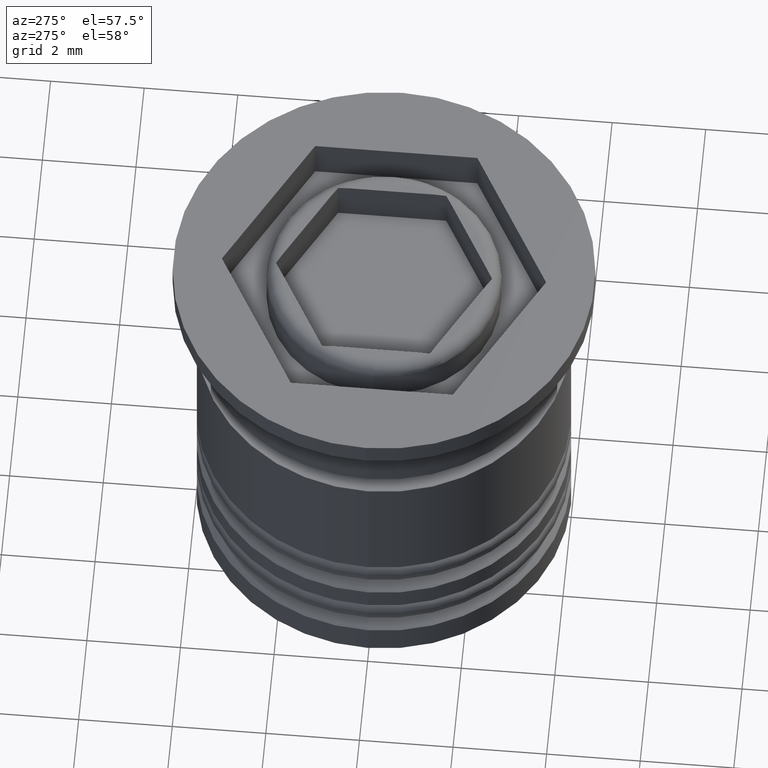
[diagram: clean part render]
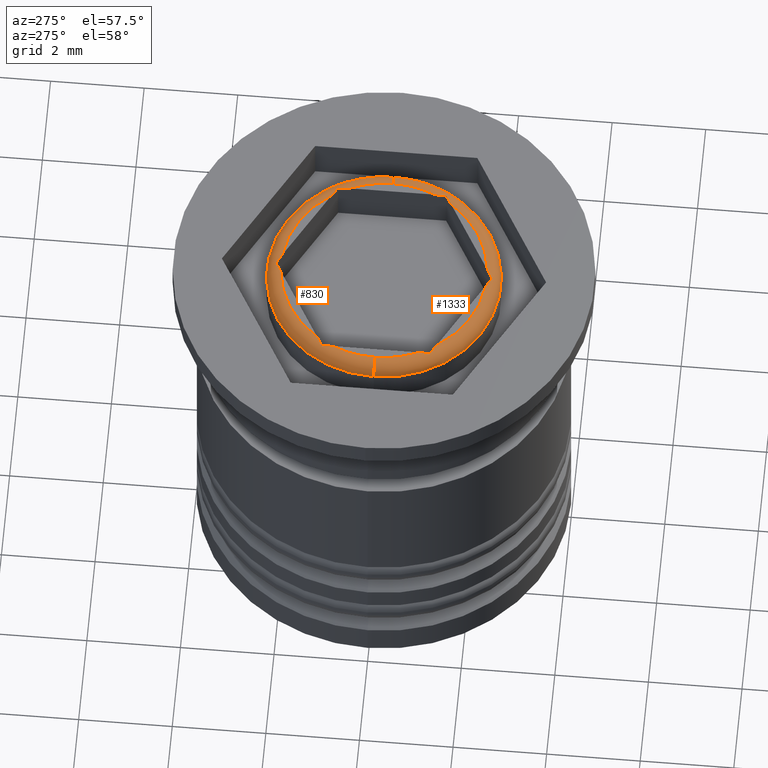
[diagram: same view with one multi-face feature highlighted, each face labeled with its STEP entity id]
A machine part, auxiliary view. The highlighted faces form ONE feature: a constant-radius fillet chain: 2 tangent blend faces with common blend radius 0.3 mm. The faces share edges in the B-rep.
Their STEP definitions:
[1] entity #1333 (Torus):
#7 = VERTEX_POINT ( 'NONE', #524 ) ;
#32 = VERTEX_POINT ( 'NONE', #729 ) ;
#45 = B_SPLINE_CURVE_WITH_KNOTS ( 'NONE', 3,
 ( #566, #96, #1338, #118 ),
 .UNSPECIFIED., .F., .F.,
 ( 4, 4 ),
 ( 1.212469994430350721E-20, 0.0002390796478456412881 ),
 .UNSPECIFIED. ) ;
#54 = CARTESIAN_POINT ( 'NONE',  ( -2.200000000000000622, 2.694222958124177500E-16, -0.2999999999999999334 ) ) ;
#94 = EDGE_CURVE ( 'NONE', #1356, #1150, #483, .T. ) ;
#96 = CARTESIAN_POINT ( 'NONE',  ( 0.06811851271951849252, -2.270072835103092324, -0.005256474890640268696 ) ) ;
#118 = CARTESIAN_POINT ( 'NONE',  ( 0.2062746066806211975, -2.190308377064462242, 0.000000000000000000 ) ) ;
#124 = EDGE_CURVE ( 'NONE', #7, #32, #1012, .T. ) ;
#138 = B_SPLINE_CURVE_WITH_KNOTS ( 'NONE', 3,
 ( #246, #1624, #579, #1442 ),
 .UNSPECIFIED., .F., .F.,
 ( 4, 4 ),
 ( 0.000000000000000000, 0.0002390796478456422638 ),
 .UNSPECIFIED. ) ;
#165 = CIRCLE ( 'NONE', #2001, 2.200000000000000622 ) ;
#220 = DIRECTION ( 'NONE',  ( 0.000000000000000000, -1.000000000000000000, 0.000000000000000000 ) ) ;
#238 = TOROIDAL_SURFACE ( 'NONE', #1371, 2.200000000000000622, 0.2999999999999999889 ) ;
#246 = CARTESIAN_POINT ( 'NONE',  ( -2.000000000000000444, -0.9165151389911687652, 0.000000000000000000 ) ) ;
#250 = ORIENTED_EDGE ( 'NONE', *, *, #1587, .F. ) ;
#259 = FACE_OUTER_BOUND ( 'NONE', #1765, .T. ) ;
#271 = CARTESIAN_POINT ( 'NONE',  ( 1.793725393319378192, -1.273793238073292811, 0.000000000000000000 ) ) ;
#276 = DIRECTION ( 'NONE',  ( -0.000000000000000000, -0.000000000000000000, 1.000000000000000000 ) ) ;
#339 = VERTEX_POINT ( 'NONE', #1151 ) ;
#348 = EDGE_CURVE ( 'NONE', #32, #1118, #138, .T. ) ;
#450 = B_SPLINE_CURVE_WITH_KNOTS ( 'NONE', 3,
 ( #1606, #694, #684, #1299 ),
 .UNSPECIFIED., .F., .F.,
 ( 4, 4 ),
 ( 2.722018774469122024E-20, 0.0002390796478456413423 ),
 .UNSPECIFIED. ) ;
#466 = ORIENTED_EDGE ( 'NONE', *, *, #1265, .F. ) ;
#483 = CIRCLE ( 'NONE', #1863, 0.2999999999999999334 ) ;
#487 = CARTESIAN_POINT ( 'NONE',  ( -2.500000000000000444, 0.000000000000000000, -0.2999999999999999334 ) ) ;
#518 = ORIENTED_EDGE ( 'NONE', *, *, #547, .F. ) ;
#524 = CARTESIAN_POINT ( 'NONE',  ( -2.200000000000000622, 2.877919977996280320E-16, 0.000000000000000000 ) ) ;
#525 = AXIS2_PLACEMENT_3D ( 'NONE', #54, #1595, #1755 ) ;
#547 = EDGE_CURVE ( 'NONE', #1118, #1890, #1633, .T. ) ;
#549 = DIRECTION ( 'NONE',  ( 0.000000000000000000, 0.000000000000000000, -1.000000000000000000 ) ) ;
#566 = CARTESIAN_POINT ( 'NONE',  ( -2.168404344971008868E-16, -2.309401076758503368, -0.02065898188042571137 ) ) ;
#572 = VERTEX_POINT ( 'NONE', #1131 ) ;
#579 = CARTESIAN_POINT ( 'NONE',  ( -2.000000000000000444, -1.076044055068429151, -0.005256474890640312932 ) ) ;
#582 = DIRECTION ( 'NONE',  ( 1.000000000000000000, 0.000000000000000000, 0.000000000000000000 ) ) ;
#583 = CARTESIAN_POINT ( 'NONE',  ( 2.000000000000000000, -1.154700538379252128, -0.02065898188042571137 ) ) ;
#635 = ORIENTED_EDGE ( 'NONE', *, *, #1949, .F. ) ;
#640 = ORIENTED_EDGE ( 'NONE', *, *, #1639, .F. ) ;
#684 = CARTESIAN_POINT ( 'NONE',  ( -0.06811851271951903375, -2.270072835103092324, -0.005256474890640238339 ) ) ;
#694 = CARTESIAN_POINT ( 'NONE',  ( -0.1369991406722239902, -2.230304586012647139, 0.000000000000000000 ) ) ;
#703 = ORIENTED_EDGE ( 'NONE', *, *, #124, .F. ) ;
#718 = CARTESIAN_POINT ( 'NONE',  ( 0.000000000000000000, 0.000000000000000000, 0.000000000000000000 ) ) ;
#729 = CARTESIAN_POINT ( 'NONE',  ( -2.000000000000000444, -0.9165151389911687652, 0.000000000000000000 ) ) ;
#741 = CARTESIAN_POINT ( 'NONE',  ( 2.500000000000000444, 3.061616997868383634E-16, -0.2999999999999999334 ) ) ;
#798 = ORIENTED_EDGE ( 'NONE', *, *, #1673, .F. ) ;
#828 = CARTESIAN_POINT ( 'NONE',  ( -1.863000859327776260, -1.233797029125107469, 7.434342767888522002E-18 ) ) ;
#851 = CARTESIAN_POINT ( 'NONE',  ( 2.000000000000000000, -1.154700538379252128, -0.02065898188042571137 ) ) ;
#885 = ORIENTED_EDGE ( 'NONE', *, *, #1847, .F. ) ;
#894 = EDGE_CURVE ( 'NONE', #339, #963, #450, .T. ) ;
#903 = B_SPLINE_CURVE_WITH_KNOTS ( 'NONE', 3,
 ( #851, #1473, #1167, #1958 ),
 .UNSPECIFIED., .F., .F.,
 ( 4, 4 ),
 ( 0.000000000000000000, 0.0002390796478456419115 ),
 .UNSPECIFIED. ) ;
#963 = VERTEX_POINT ( 'NONE', #1997 ) ;
#999 = DIRECTION ( 'NONE',  ( 1.000000000000000000, 0.000000000000000000, 0.000000000000000000 ) ) ;
#1012 = CIRCLE ( 'NONE', #2028, 2.200000000000000622 ) ;
#1043 = CARTESIAN_POINT ( 'NONE',  ( 0.000000000000000000, 0.000000000000000000, 0.000000000000000000 ) ) ;
#1047 = CARTESIAN_POINT ( 'NONE',  ( 0.000000000000000000, 0.000000000000000000, 0.000000000000000000 ) ) ;
#1081 = CARTESIAN_POINT ( 'NONE',  ( 1.863000859327775816, -1.233797029125107469, 0.000000000000000000 ) ) ;
#1118 = VERTEX_POINT ( 'NONE', #1454 ) ;
#1131 = CARTESIAN_POINT ( 'NONE',  ( 2.000000000000000000, -1.154700538379252128, -0.02065898188042571137 ) ) ;
#1135 = ORIENTED_EDGE ( 'NONE', *, *, #348, .F. ) ;
#1150 = VERTEX_POINT ( 'NONE', #1884 ) ;
#1151 = CARTESIAN_POINT ( 'NONE',  ( -0.2062746066806217526, -2.190308377064462242, 0.000000000000000000 ) ) ;
#1167 = CARTESIAN_POINT ( 'NONE',  ( 2.000000000000000000, -0.9965075568875400025, 3.123516711406614449E-17 ) ) ;
#1180 = CARTESIAN_POINT ( 'NONE',  ( 0.000000000000000000, 0.000000000000000000, 0.000000000000000000 ) ) ;
#1198 = CARTESIAN_POINT ( 'NONE',  ( 0.000000000000000000, 0.000000000000000000, -0.2999999999999999334 ) ) ;
#1210 = EDGE_CURVE ( 'NONE', #1444, #1150, #1943, .T. ) ;
#1218 = CARTESIAN_POINT ( 'NONE',  ( 1.793725393319378192, -1.273793238073292811, 0.000000000000000000 ) ) ;
#1234 = CIRCLE ( 'NONE', #1661, 2.200000000000000622 ) ;
#1265 = EDGE_CURVE ( 'NONE', #572, #1444, #903, .T. ) ;
#1278 = CARTESIAN_POINT ( 'NONE',  ( -1.931881487280481702, -1.194028780034662729, -0.005256474890640312932 ) ) ;
#1282 = ORIENTED_EDGE ( 'NONE', *, *, #94, .T. ) ;
#1299 = CARTESIAN_POINT ( 'NONE',  ( -2.168404344971008868E-16, -2.309401076758503368, -0.02065898188042571137 ) ) ;
#1333 = ADVANCED_FACE ( 'NONE', ( #259 ), #238, .T. ) ;
#1338 = CARTESIAN_POINT ( 'NONE',  ( 0.1369991406722237681, -2.230304586012647583, -3.386240097523933451E-18 ) ) ;
#1350 = DIRECTION ( 'NONE',  ( 1.000000000000000000, 0.000000000000000000, 0.000000000000000000 ) ) ;
#1356 = VERTEX_POINT ( 'NONE', #741 ) ;
#1371 = AXIS2_PLACEMENT_3D ( 'NONE', #2013, #1504, #1515 ) ;
#1442 = CARTESIAN_POINT ( 'NONE',  ( -2.000000000000000444, -1.154700538379251684, -0.02065898188042571137 ) ) ;
#1444 = VERTEX_POINT ( 'NONE', #1654 ) ;
#1454 = CARTESIAN_POINT ( 'NONE',  ( -2.000000000000000444, -1.154700538379251684, -0.02065898188042571137 ) ) ;
#1466 = DIRECTION ( 'NONE',  ( -0.000000000000000000, -0.000000000000000000, 1.000000000000000000 ) ) ;
#1473 = CARTESIAN_POINT ( 'NONE',  ( 2.000000000000000000, -1.076044055068429595, -0.005256474890640241808 ) ) ;
#1474 = DIRECTION ( 'NONE',  ( 0.000000000000000000, 0.000000000000000000, -1.000000000000000000 ) ) ;
#1500 = EDGE_CURVE ( 'NONE', #1868, #7, #1833, .T. ) ;
#1504 = DIRECTION ( 'NONE',  ( -0.000000000000000000, -0.000000000000000000, 1.000000000000000000 ) ) ;
#1505 = DIRECTION ( 'NONE',  ( 1.000000000000000000, 0.000000000000000000, 0.000000000000000000 ) ) ;
#1515 = DIRECTION ( 'NONE',  ( 1.000000000000000000, 0.000000000000000000, 0.000000000000000000 ) ) ;
#1530 = AXIS2_PLACEMENT_3D ( 'NONE', #718, #1466, #999 ) ;
#1582 = CARTESIAN_POINT ( 'NONE',  ( -1.793725393319378636, -1.273793238073292589, 0.000000000000000000 ) ) ;
#1587 = EDGE_CURVE ( 'NONE', #963, #1594, #45, .T. ) ;
#1594 = VERTEX_POINT ( 'NONE', #1805 ) ;
#1595 = DIRECTION ( 'NONE',  ( 1.224646799147353207E-16, 1.000000000000000000, 0.000000000000000000 ) ) ;
#1606 = CARTESIAN_POINT ( 'NONE',  ( -0.2062746066806217526, -2.190308377064462242, 0.000000000000000000 ) ) ;
#1617 = ORIENTED_EDGE ( 'NONE', *, *, #1500, .F. ) ;
#1624 = CARTESIAN_POINT ( 'NONE',  ( -2.000000000000000444, -0.9965075568875393364, 0.000000000000000000 ) ) ;
#1633 = B_SPLINE_CURVE_WITH_KNOTS ( 'NONE', 3,
 ( #1761, #1278, #828, #1911 ),
 .UNSPECIFIED., .F., .F.,
 ( 4, 4 ),
 ( 3.388131789017200980E-21, 0.0002390796478456416675 ),
 .UNSPECIFIED. ) ;
#1639 = EDGE_CURVE ( 'NONE', #1890, #339, #1234, .T. ) ;
#1654 = CARTESIAN_POINT ( 'NONE',  ( 2.000000000000000000, -0.9165151389911695423, 0.000000000000000000 ) ) ;
#1661 = AXIS2_PLACEMENT_3D ( 'NONE', #1180, #1981, #1816 ) ;
#1668 = B_SPLINE_CURVE_WITH_KNOTS ( 'NONE', 3,
 ( #1218, #1081, #1993, #583 ),
 .UNSPECIFIED., .F., .F.,
 ( 4, 4 ),
 ( 9.333598368916043247E-21, 0.0002390796478456414507 ),
 .UNSPECIFIED. ) ;
#1673 = EDGE_CURVE ( 'NONE', #1356, #1868, #1945, .T. ) ;
#1708 = ORIENTED_EDGE ( 'NONE', *, *, #894, .F. ) ;
#1755 = DIRECTION ( 'NONE',  ( -1.000000000000000000, 1.224646799147353207E-16, 0.000000000000000000 ) ) ;
#1761 = CARTESIAN_POINT ( 'NONE',  ( -2.000000000000000444, -1.154700538379251684, -0.02065898188042571137 ) ) ;
#1765 = EDGE_LOOP ( 'NONE', ( #1617, #798, #1282, #1926, #466, #885, #635, #250, #1708, #640, #518, #1135, #703 ) ) ;
#1799 = VERTEX_POINT ( 'NONE', #271 ) ;
#1805 = CARTESIAN_POINT ( 'NONE',  ( 0.2062746066806211975, -2.190308377064462242, 0.000000000000000000 ) ) ;
#1816 = DIRECTION ( 'NONE',  ( 1.000000000000000000, 0.000000000000000000, 0.000000000000000000 ) ) ;
#1827 = DIRECTION ( 'NONE',  ( -0.000000000000000000, -0.000000000000000000, 1.000000000000000000 ) ) ;
#1833 = CIRCLE ( 'NONE', #525, 0.2999999999999999334 ) ;
#1847 = EDGE_CURVE ( 'NONE', #1799, #572, #1668, .T. ) ;
#1863 = AXIS2_PLACEMENT_3D ( 'NONE', #1966, #220, #1474 ) ;
#1868 = VERTEX_POINT ( 'NONE', #487 ) ;
#1884 = CARTESIAN_POINT ( 'NONE',  ( 2.200000000000000622, 0.000000000000000000, 0.000000000000000000 ) ) ;
#1890 = VERTEX_POINT ( 'NONE', #1582 ) ;
#1911 = CARTESIAN_POINT ( 'NONE',  ( -1.793725393319378636, -1.273793238073292589, 0.000000000000000000 ) ) ;
#1926 = ORIENTED_EDGE ( 'NONE', *, *, #1210, .F. ) ;
#1943 = CIRCLE ( 'NONE', #1530, 2.200000000000000622 ) ;
#1945 = CIRCLE ( 'NONE', #2031, 2.500000000000000444 ) ;
#1949 = EDGE_CURVE ( 'NONE', #1594, #1799, #165, .T. ) ;
#1958 = CARTESIAN_POINT ( 'NONE',  ( 2.000000000000000000, -0.9165151389911695423, 0.000000000000000000 ) ) ;
#1966 = CARTESIAN_POINT ( 'NONE',  ( 2.200000000000000622, 0.000000000000000000, -0.2999999999999999334 ) ) ;
#1981 = DIRECTION ( 'NONE',  ( -0.000000000000000000, -0.000000000000000000, 1.000000000000000000 ) ) ;
#1993 = CARTESIAN_POINT ( 'NONE',  ( 1.931881487280481258, -1.194028780034663173, -0.005256474890640258288 ) ) ;
#1997 = CARTESIAN_POINT ( 'NONE',  ( -2.168404344971008868E-16, -2.309401076758503368, -0.02065898188042571137 ) ) ;
#2001 = AXIS2_PLACEMENT_3D ( 'NONE', #1043, #1827, #582 ) ;
#2013 = CARTESIAN_POINT ( 'NONE',  ( 0.000000000000000000, 0.000000000000000000, -0.2999999999999999334 ) ) ;
#2028 = AXIS2_PLACEMENT_3D ( 'NONE', #1047, #276, #1505 ) ;
#2031 = AXIS2_PLACEMENT_3D ( 'NONE', #1198, #549, #1350 ) ;
[2] entity #830 (Torus):
#7 = VERTEX_POINT ( 'NONE', #524 ) ;
#33 = ORIENTED_EDGE ( 'NONE', *, *, #2009, .F. ) ;
#44 = DIRECTION ( 'NONE',  ( 1.000000000000000000, 0.000000000000000000, 0.000000000000000000 ) ) ;
#48 = VERTEX_POINT ( 'NONE', #360 ) ;
#51 = ORIENTED_EDGE ( 'NONE', *, *, #1957, .F. ) ;
#54 = CARTESIAN_POINT ( 'NONE',  ( -2.200000000000000622, 2.694222958124177500E-16, -0.2999999999999999334 ) ) ;
#61 = B_SPLINE_CURVE_WITH_KNOTS ( 'NONE', 3,
 ( #428, #258, #1514, #1973 ),
 .UNSPECIFIED., .F., .F.,
 ( 4, 4 ),
 ( 2.996442637876366042E-19, 0.0002390796478456412068 ),
 .UNSPECIFIED. ) ;
#94 = EDGE_CURVE ( 'NONE', #1356, #1150, #483, .T. ) ;
#108 = EDGE_CURVE ( 'NONE', #906, #137, #678, .T. ) ;
#121 = CARTESIAN_POINT ( 'NONE',  ( 2.000000000000000888, 0.9165151389911680990, 0.000000000000000000 ) ) ;
#122 = CARTESIAN_POINT ( 'NONE',  ( 0.000000000000000000, 0.000000000000000000, 0.000000000000000000 ) ) ;
#137 = VERTEX_POINT ( 'NONE', #1672 ) ;
#195 = CARTESIAN_POINT ( 'NONE',  ( -1.793725393319378858, 1.273793238073292589, 0.000000000000000000 ) ) ;
#200 = VERTEX_POINT ( 'NONE', #2017 ) ;
#207 = DIRECTION ( 'NONE',  ( 1.000000000000000000, 0.000000000000000000, 0.000000000000000000 ) ) ;
#215 = CARTESIAN_POINT ( 'NONE',  ( 0.000000000000000000, 0.000000000000000000, 0.000000000000000000 ) ) ;
#220 = DIRECTION ( 'NONE',  ( 0.000000000000000000, -1.000000000000000000, 0.000000000000000000 ) ) ;
#230 = CIRCLE ( 'NONE', #659, 2.200000000000000622 ) ;
#242 = EDGE_CURVE ( 'NONE', #471, #48, #1246, .T. ) ;
#258 = CARTESIAN_POINT ( 'NONE',  ( 0.1369991406722236571, 2.230304586012647139, 0.000000000000000000 ) ) ;
#287 = CARTESIAN_POINT ( 'NONE',  ( -2.000000000000000444, 1.154700538379251462, -0.02065898188042571137 ) ) ;
#360 = CARTESIAN_POINT ( 'NONE',  ( 1.793725393319377970, 1.273793238073292589, 0.000000000000000000 ) ) ;
#368 = ORIENTED_EDGE ( 'NONE', *, *, #94, .F. ) ;
#371 = CARTESIAN_POINT ( 'NONE',  ( 0.000000000000000000, 2.309401076758503368, -0.02065898188042571137 ) ) ;
#387 = EDGE_CURVE ( 'NONE', #48, #624, #662, .T. ) ;
#390 = CARTESIAN_POINT ( 'NONE',  ( -1.793725393319378858, 1.273793238073292589, 0.000000000000000000 ) ) ;
#421 = CARTESIAN_POINT ( 'NONE',  ( 2.000000000000000888, 1.076044055068428928, -0.005256474890640319003 ) ) ;
#428 = CARTESIAN_POINT ( 'NONE',  ( 0.2062746066806217526, 2.190308377064462242, 0.000000000000000000 ) ) ;
#471 = VERTEX_POINT ( 'NONE', #877 ) ;
#483 = CIRCLE ( 'NONE', #1863, 0.2999999999999999334 ) ;
#487 = CARTESIAN_POINT ( 'NONE',  ( -2.500000000000000444, 0.000000000000000000, -0.2999999999999999334 ) ) ;
#512 = ORIENTED_EDGE ( 'NONE', *, *, #1500, .T. ) ;
#524 = CARTESIAN_POINT ( 'NONE',  ( -2.200000000000000622, 2.877919977996280320E-16, 0.000000000000000000 ) ) ;
#525 = AXIS2_PLACEMENT_3D ( 'NONE', #54, #1595, #1755 ) ;
#535 = CIRCLE ( 'NONE', #991, 2.200000000000000622 ) ;
#539 = CARTESIAN_POINT ( 'NONE',  ( 0.000000000000000000, 2.309401076758503368, -0.02065898188042571137 ) ) ;
#551 = CARTESIAN_POINT ( 'NONE',  ( 1.931881487280481924, 1.194028780034662951, -0.005256474890640377116 ) ) ;
#567 = VERTEX_POINT ( 'NONE', #1452 ) ;
#575 = B_SPLINE_CURVE_WITH_KNOTS ( 'NONE', 3,
 ( #287, #1688, #1548, #1229 ),
 .UNSPECIFIED., .F., .F.,
 ( 4, 4 ),
 ( 0.000000000000000000, 0.0002390796478456420199 ),
 .UNSPECIFIED. ) ;
#603 = CARTESIAN_POINT ( 'NONE',  ( 0.000000000000000000, 0.000000000000000000, 0.000000000000000000 ) ) ;
#614 = EDGE_CURVE ( 'NONE', #1868, #1356, #1451, .T. ) ;
#624 = VERTEX_POINT ( 'NONE', #1892 ) ;
#627 = ORIENTED_EDGE ( 'NONE', *, *, #786, .F. ) ;
#659 = AXIS2_PLACEMENT_3D ( 'NONE', #603, #1867, #748 ) ;
#662 = CIRCLE ( 'NONE', #1740, 2.200000000000000622 ) ;
#667 = ORIENTED_EDGE ( 'NONE', *, *, #1169, .F. ) ;
#673 = CARTESIAN_POINT ( 'NONE',  ( -1.931881487280481702, 1.194028780034662729, -0.005256474890640332881 ) ) ;
#678 = B_SPLINE_CURVE_WITH_KNOTS ( 'NONE', 3,
 ( #539, #1156, #1196, #743 ),
 .UNSPECIFIED., .F., .F.,
 ( 4, 4 ),
 ( 1.212469994430350270E-20, 0.0002390796478456412881 ),
 .UNSPECIFIED. ) ;
#716 = CARTESIAN_POINT ( 'NONE',  ( 2.000000000000000888, 1.154700538379251684, -0.02065898188042657874 ) ) ;
#741 = CARTESIAN_POINT ( 'NONE',  ( 2.500000000000000444, 3.061616997868383634E-16, -0.2999999999999999334 ) ) ;
#743 = CARTESIAN_POINT ( 'NONE',  ( -0.2062746066806214196, 2.190308377064462242, 0.000000000000000000 ) ) ;
#748 = DIRECTION ( 'NONE',  ( 1.000000000000000000, 0.000000000000000000, 0.000000000000000000 ) ) ;
#786 = EDGE_CURVE ( 'NONE', #624, #906, #61, .T. ) ;
#795 = CIRCLE ( 'NONE', #1696, 2.200000000000000622 ) ;
#808 = EDGE_LOOP ( 'NONE', ( #1087, #512, #1014, #33, #667, #1071, #909, #627, #1896, #932, #51, #1247, #368 ) ) ;
#818 = CARTESIAN_POINT ( 'NONE',  ( 0.000000000000000000, 0.000000000000000000, -0.2999999999999999334 ) ) ;
#827 = FACE_OUTER_BOUND ( 'NONE', #808, .T. ) ;
#829 = CARTESIAN_POINT ( 'NONE',  ( -1.863000859327776260, 1.233797029125107247, -7.123549657312952816E-17 ) ) ;
#830 = ADVANCED_FACE ( 'NONE', ( #827 ), #1512, .T. ) ;
#838 = CARTESIAN_POINT ( 'NONE',  ( 0.000000000000000000, 0.000000000000000000, 0.000000000000000000 ) ) ;
#857 = EDGE_CURVE ( 'NONE', #1150, #200, #535, .T. ) ;
#877 = CARTESIAN_POINT ( 'NONE',  ( 2.000000000000000888, 1.154700538379251684, -0.02065898188042657874 ) ) ;
#896 = CARTESIAN_POINT ( 'NONE',  ( 2.000000000000000888, 0.9965075568875386702, -5.781863551040906149E-17 ) ) ;
#906 = VERTEX_POINT ( 'NONE', #371 ) ;
#909 = ORIENTED_EDGE ( 'NONE', *, *, #108, .F. ) ;
#932 = ORIENTED_EDGE ( 'NONE', *, *, #242, .F. ) ;
#982 = B_SPLINE_CURVE_WITH_KNOTS ( 'NONE', 3,
 ( #195, #829, #673, #1291 ),
 .UNSPECIFIED., .F., .F.,
 ( 4, 4 ),
 ( 2.174422272890622232E-19, 0.0002390796478456415591 ),
 .UNSPECIFIED. ) ;
#991 = AXIS2_PLACEMENT_3D ( 'NONE', #838, #1586, #1779 ) ;
#1014 = ORIENTED_EDGE ( 'NONE', *, *, #1803, .F. ) ;
#1030 = B_SPLINE_CURVE_WITH_KNOTS ( 'NONE', 3,
 ( #121, #896, #421, #1999 ),
 .UNSPECIFIED., .F., .F.,
 ( 4, 4 ),
 ( 1.088212275557260522E-19, 0.0002390796478456430499 ),
 .UNSPECIFIED. ) ;
#1052 = DIRECTION ( 'NONE',  ( -0.000000000000000000, -0.000000000000000000, 1.000000000000000000 ) ) ;
#1071 = ORIENTED_EDGE ( 'NONE', *, *, #1324, .F. ) ;
#1087 = ORIENTED_EDGE ( 'NONE', *, *, #614, .F. ) ;
#1150 = VERTEX_POINT ( 'NONE', #1884 ) ;
#1153 = CARTESIAN_POINT ( 'NONE',  ( 1.793725393319377970, 1.273793238073292589, 0.000000000000000000 ) ) ;
#1156 = CARTESIAN_POINT ( 'NONE',  ( -0.06811851271951871456, 2.270072835103092324, -0.005256474890640268696 ) ) ;
#1169 = EDGE_CURVE ( 'NONE', #1220, #1887, #982, .T. ) ;
#1181 = AXIS2_PLACEMENT_3D ( 'NONE', #1608, #1800, #207 ) ;
#1191 = CARTESIAN_POINT ( 'NONE',  ( 1.863000859327776260, 1.233797029125107692, 2.956739694495964183E-17 ) ) ;
#1196 = CARTESIAN_POINT ( 'NONE',  ( -0.1369991406722239902, 2.230304586012647583, 2.874465159271312722E-18 ) ) ;
#1220 = VERTEX_POINT ( 'NONE', #390 ) ;
#1229 = CARTESIAN_POINT ( 'NONE',  ( -2.000000000000000444, 0.9165151389911687652, 0.000000000000000000 ) ) ;
#1246 = B_SPLINE_CURVE_WITH_KNOTS ( 'NONE', 3,
 ( #716, #551, #1191, #1153 ),
 .UNSPECIFIED., .F., .F.,
 ( 4, 4 ),
 ( 3.388131789017201356E-21, 0.0002390796478456426433 ),
 .UNSPECIFIED. ) ;
#1247 = ORIENTED_EDGE ( 'NONE', *, *, #857, .F. ) ;
#1291 = CARTESIAN_POINT ( 'NONE',  ( -2.000000000000000444, 1.154700538379251462, -0.02065898188042571137 ) ) ;
#1308 = DIRECTION ( 'NONE',  ( 1.000000000000000000, 0.000000000000000000, 0.000000000000000000 ) ) ;
#1324 = EDGE_CURVE ( 'NONE', #137, #1220, #230, .T. ) ;
#1356 = VERTEX_POINT ( 'NONE', #741 ) ;
#1451 = CIRCLE ( 'NONE', #1664, 2.500000000000000444 ) ;
#1452 = CARTESIAN_POINT ( 'NONE',  ( -2.000000000000000444, 0.9165151389911687652, 0.000000000000000000 ) ) ;
#1474 = DIRECTION ( 'NONE',  ( 0.000000000000000000, 0.000000000000000000, -1.000000000000000000 ) ) ;
#1500 = EDGE_CURVE ( 'NONE', #1868, #7, #1833, .T. ) ;
#1512 = TOROIDAL_SURFACE ( 'NONE', #1181, 2.200000000000000622, 0.2999999999999999889 ) ;
#1514 = CARTESIAN_POINT ( 'NONE',  ( 0.06811851271951854803, 2.270072835103092324, -0.005256474890640251349 ) ) ;
#1548 = CARTESIAN_POINT ( 'NONE',  ( -2.000000000000000444, 0.9965075568875391143, 3.123516711406614449E-17 ) ) ;
#1586 = DIRECTION ( 'NONE',  ( -0.000000000000000000, -0.000000000000000000, 1.000000000000000000 ) ) ;
#1595 = DIRECTION ( 'NONE',  ( 1.224646799147353207E-16, 1.000000000000000000, 0.000000000000000000 ) ) ;
#1608 = CARTESIAN_POINT ( 'NONE',  ( 0.000000000000000000, 0.000000000000000000, -0.2999999999999999334 ) ) ;
#1664 = AXIS2_PLACEMENT_3D ( 'NONE', #818, #1910, #44 ) ;
#1672 = CARTESIAN_POINT ( 'NONE',  ( -0.2062746066806214196, 2.190308377064462242, 0.000000000000000000 ) ) ;
#1688 = CARTESIAN_POINT ( 'NONE',  ( -2.000000000000000444, 1.076044055068428928, -0.005256474890640217522 ) ) ;
#1696 = AXIS2_PLACEMENT_3D ( 'NONE', #122, #1052, #2029 ) ;
#1740 = AXIS2_PLACEMENT_3D ( 'NONE', #215, #1969, #1308 ) ;
#1755 = DIRECTION ( 'NONE',  ( -1.000000000000000000, 1.224646799147353207E-16, 0.000000000000000000 ) ) ;
#1779 = DIRECTION ( 'NONE',  ( 1.000000000000000000, 0.000000000000000000, 0.000000000000000000 ) ) ;
#1800 = DIRECTION ( 'NONE',  ( -0.000000000000000000, -0.000000000000000000, 1.000000000000000000 ) ) ;
#1803 = EDGE_CURVE ( 'NONE', #567, #7, #795, .T. ) ;
#1833 = CIRCLE ( 'NONE', #525, 0.2999999999999999334 ) ;
#1863 = AXIS2_PLACEMENT_3D ( 'NONE', #1966, #220, #1474 ) ;
#1867 = DIRECTION ( 'NONE',  ( -0.000000000000000000, -0.000000000000000000, 1.000000000000000000 ) ) ;
#1868 = VERTEX_POINT ( 'NONE', #487 ) ;
#1884 = CARTESIAN_POINT ( 'NONE',  ( 2.200000000000000622, 0.000000000000000000, 0.000000000000000000 ) ) ;
#1887 = VERTEX_POINT ( 'NONE', #1898 ) ;
#1892 = CARTESIAN_POINT ( 'NONE',  ( 0.2062746066806217526, 2.190308377064462242, 0.000000000000000000 ) ) ;
#1896 = ORIENTED_EDGE ( 'NONE', *, *, #387, .F. ) ;
#1898 = CARTESIAN_POINT ( 'NONE',  ( -2.000000000000000444, 1.154700538379251462, -0.02065898188042571137 ) ) ;
#1910 = DIRECTION ( 'NONE',  ( 0.000000000000000000, 0.000000000000000000, -1.000000000000000000 ) ) ;
#1957 = EDGE_CURVE ( 'NONE', #200, #471, #1030, .T. ) ;
#1966 = CARTESIAN_POINT ( 'NONE',  ( 2.200000000000000622, 0.000000000000000000, -0.2999999999999999334 ) ) ;
#1969 = DIRECTION ( 'NONE',  ( -0.000000000000000000, -0.000000000000000000, 1.000000000000000000 ) ) ;
#1973 = CARTESIAN_POINT ( 'NONE',  ( 0.000000000000000000, 2.309401076758503368, -0.02065898188042571137 ) ) ;
#1999 = CARTESIAN_POINT ( 'NONE',  ( 2.000000000000000888, 1.154700538379251684, -0.02065898188042657874 ) ) ;
#2009 = EDGE_CURVE ( 'NONE', #1887, #567, #575, .T. ) ;
#2017 = CARTESIAN_POINT ( 'NONE',  ( 2.000000000000000888, 0.9165151389911680990, 0.000000000000000000 ) ) ;
#2029 = DIRECTION ( 'NONE',  ( 1.000000000000000000, 0.000000000000000000, 0.000000000000000000 ) ) ;